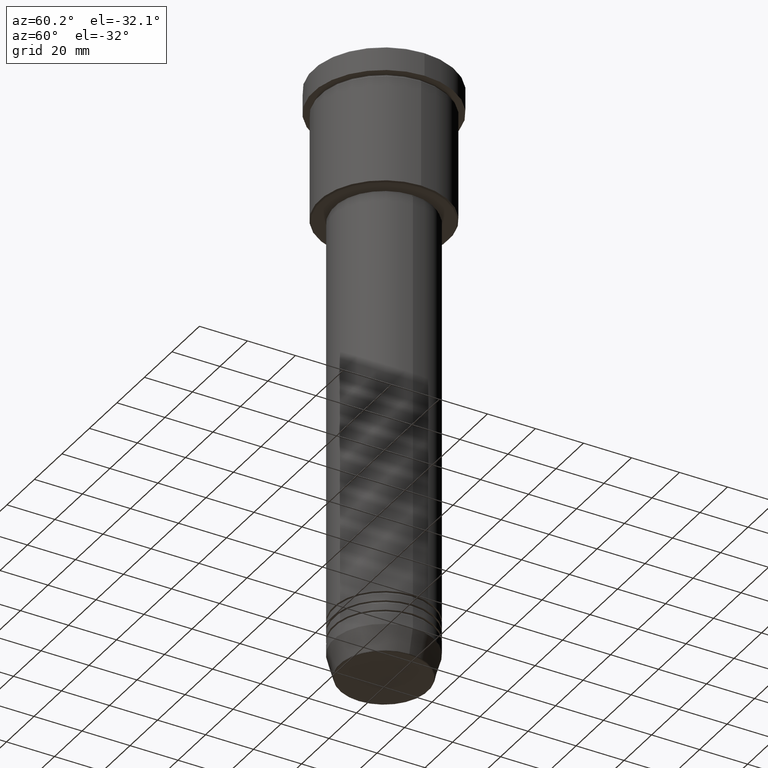
[diagram: clean part render]
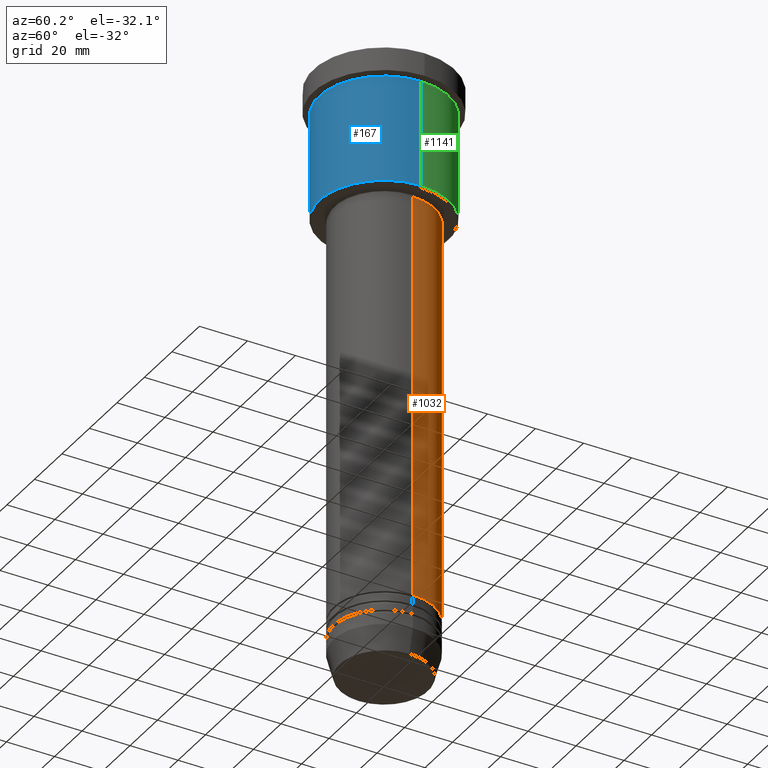
[diagram: same view with three faces highlighted in distinct colors, each labeled with its STEP entity id]
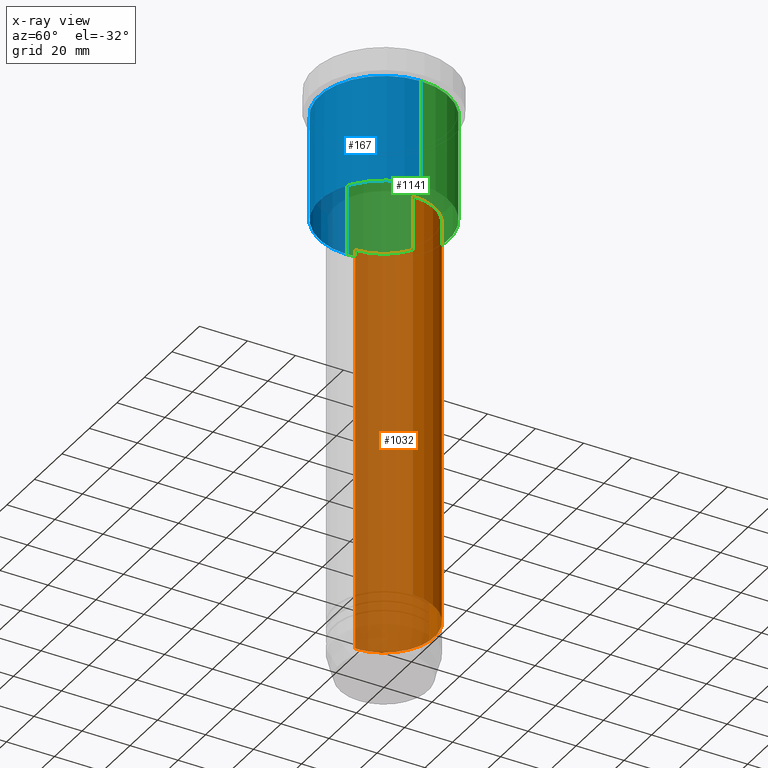
[diagram: x-ray of the same camera — body ghosted, the three highlighted faces saturated]
A machine part, auxiliary view with three faces highlighted in distinct colors.
The next image is the same camera in x-ray (body ghosted, the three faces saturated) — at least one of them is partly hidden behind the body in this view.
Their STEP definitions:

[orange] entity #1032 — the highlighted cylindrical surface (partial cylindrical patch) has radius 21 mm, axis along (-0, -0, 1).
#44 = VERTEX_POINT ( 'NONE', #1158 ) ;
#234 = ORIENTED_EDGE ( 'NONE', *, *, #1067, .F. ) ;
#240 = CARTESIAN_POINT ( 'NONE',  ( 0.000000000000000000, 0.000000000000000000, -226.9999999999998863 ) ) ;
#293 = DIRECTION ( 'NONE',  ( 1.000000000000000000, 0.000000000000000000, 0.000000000000000000 ) ) ;
#341 = CARTESIAN_POINT ( 'NONE',  ( -20.99999999999999645, 2.571758278209441267E-15, -57.00000000000002842 ) ) ;
#348 = CIRCLE ( 'NONE', #710, 21.00000000000000000 ) ;
#443 = CARTESIAN_POINT ( 'NONE',  ( 0.000000000000000000, 0.000000000000000000, 0.000000000000000000 ) ) ;
#463 = CARTESIAN_POINT ( 'NONE',  ( 0.000000000000000000, 0.000000000000000000, -57.00000000000002842 ) ) ;
#480 = LINE ( 'NONE', #687, #1092 ) ;
#506 = EDGE_CURVE ( 'NONE', #44, #1037, #480, .T. ) ;
#512 = ORIENTED_EDGE ( 'NONE', *, *, #1011, .T. ) ;
#542 = EDGE_CURVE ( 'NONE', #561, #852, #853, .T. ) ;
#561 = VERTEX_POINT ( 'NONE', #753 ) ;
#584 = CARTESIAN_POINT ( 'NONE',  ( -20.99999999999999645, 2.571758278209441267E-15, 0.000000000000000000 ) ) ;
#687 = CARTESIAN_POINT ( 'NONE',  ( 20.99999999999999645, 0.000000000000000000, 0.000000000000000000 ) ) ;
#709 = DIRECTION ( 'NONE',  ( 1.000000000000000000, 0.000000000000000000, 0.000000000000000000 ) ) ;
#710 = AXIS2_PLACEMENT_3D ( 'NONE', #240, #890, #795 ) ;
#753 = CARTESIAN_POINT ( 'NONE',  ( -21.00000000000000000, 2.571758278209441661E-15, -226.9999999999998863 ) ) ;
#772 = ORIENTED_EDGE ( 'NONE', *, *, #542, .T. ) ;
#773 = EDGE_LOOP ( 'NONE', ( #512, #772, #234, #983 ) ) ;
#790 = CYLINDRICAL_SURFACE ( 'NONE', #925, 20.99999999999999645 ) ;
#795 = DIRECTION ( 'NONE',  ( 1.000000000000000000, 0.000000000000000000, 0.000000000000000000 ) ) ;
#805 = FACE_OUTER_BOUND ( 'NONE', #773, .T. ) ;
#830 = DIRECTION ( 'NONE',  ( -0.000000000000000000, -0.000000000000000000, 1.000000000000000000 ) ) ;
#852 = VERTEX_POINT ( 'NONE', #341 ) ;
#853 = LINE ( 'NONE', #584, #1007 ) ;
#890 = DIRECTION ( 'NONE',  ( -0.000000000000000000, -0.000000000000000000, 1.000000000000000000 ) ) ;
#891 = AXIS2_PLACEMENT_3D ( 'NONE', #463, #830, #293 ) ;
#925 = AXIS2_PLACEMENT_3D ( 'NONE', #443, #978, #709 ) ;
#978 = DIRECTION ( 'NONE',  ( -0.000000000000000000, -0.000000000000000000, 1.000000000000000000 ) ) ;
#983 = ORIENTED_EDGE ( 'NONE', *, *, #506, .F. ) ;
#1007 = VECTOR ( 'NONE', #1035, 1000.000000000000000 ) ;
#1011 = EDGE_CURVE ( 'NONE', #44, #561, #348, .T. ) ;
#1032 = ADVANCED_FACE ( 'NONE', ( #805 ), #790, .T. ) ;
#1035 = DIRECTION ( 'NONE',  ( -0.000000000000000000, -0.000000000000000000, 1.000000000000000000 ) ) ;
#1037 = VERTEX_POINT ( 'NONE', #1168 ) ;
#1049 = DIRECTION ( 'NONE',  ( -0.000000000000000000, -0.000000000000000000, 1.000000000000000000 ) ) ;
#1067 = EDGE_CURVE ( 'NONE', #1037, #852, #1145, .T. ) ;
#1092 = VECTOR ( 'NONE', #1049, 1000.000000000000000 ) ;
#1145 = CIRCLE ( 'NONE', #891, 20.99999999999999645 ) ;
#1158 = CARTESIAN_POINT ( 'NONE',  ( 21.00000000000000000, 0.000000000000000000, -226.9999999999998863 ) ) ;
#1168 = CARTESIAN_POINT ( 'NONE',  ( 20.99999999999999645, 0.000000000000000000, -57.00000000000002842 ) ) ;

[blue] entity #167 — the highlighted cylindrical surface (partial cylindrical patch) has radius 27 mm, axis along (-0, -0, 1).
#10 = VERTEX_POINT ( 'NONE', #77 ) ;
#45 = DIRECTION ( 'NONE',  ( -0.000000000000000000, -0.000000000000000000, 1.000000000000000000 ) ) ;
#77 = CARTESIAN_POINT ( 'NONE',  ( 27.00000000000000355, 0.000000000000000000, -55.50000000000002132 ) ) ;
#87 = CARTESIAN_POINT ( 'NONE',  ( 0.000000000000000000, 0.000000000000000000, -10.99999999999999289 ) ) ;
#93 = CARTESIAN_POINT ( 'NONE',  ( 27.00000000000000355, 0.000000000000000000, -10.99999999999999289 ) ) ;
#98 = FACE_OUTER_BOUND ( 'NONE', #989, .T. ) ;
#110 = VERTEX_POINT ( 'NONE', #93 ) ;
#117 = LINE ( 'NONE', #760, #663 ) ;
#162 = ORIENTED_EDGE ( 'NONE', *, *, #291, .T. ) ;
#167 = ADVANCED_FACE ( 'NONE', ( #98 ), #1101, .T. ) ;
#173 = ORIENTED_EDGE ( 'NONE', *, *, #539, .T. ) ;
#214 = EDGE_CURVE ( 'NONE', #874, #110, #1177, .T. ) ;
#281 = CARTESIAN_POINT ( 'NONE',  ( 0.000000000000000000, 0.000000000000000000, 0.000000000000000000 ) ) ;
#291 = EDGE_CURVE ( 'NONE', #1175, #10, #345, .T. ) ;
#304 = AXIS2_PLACEMENT_3D ( 'NONE', #87, #457, #821 ) ;
#345 = CIRCLE ( 'NONE', #1089, 27.00000000000000355 ) ;
#407 = ORIENTED_EDGE ( 'NONE', *, *, #214, .F. ) ;
#410 = ORIENTED_EDGE ( 'NONE', *, *, #899, .F. ) ;
#425 = CARTESIAN_POINT ( 'NONE',  ( 0.000000000000000000, 0.000000000000000000, -55.50000000000002132 ) ) ;
#426 = CARTESIAN_POINT ( 'NONE',  ( -27.00000000000000355, 3.306546357697854128E-15, 0.000000000000000000 ) ) ;
#457 = DIRECTION ( 'NONE',  ( -0.000000000000000000, -0.000000000000000000, 1.000000000000000000 ) ) ;
#530 = LINE ( 'NONE', #426, #762 ) ;
#539 = EDGE_CURVE ( 'NONE', #10, #110, #117, .T. ) ;
#639 = DIRECTION ( 'NONE',  ( 1.000000000000000000, 0.000000000000000000, 0.000000000000000000 ) ) ;
#652 = DIRECTION ( 'NONE',  ( -0.000000000000000000, -0.000000000000000000, 1.000000000000000000 ) ) ;
#663 = VECTOR ( 'NONE', #45, 1000.000000000000000 ) ;
#760 = CARTESIAN_POINT ( 'NONE',  ( 27.00000000000000355, 0.000000000000000000, 0.000000000000000000 ) ) ;
#762 = VECTOR ( 'NONE', #987, 1000.000000000000000 ) ;
#787 = DIRECTION ( 'NONE',  ( -0.000000000000000000, -0.000000000000000000, 1.000000000000000000 ) ) ;
#821 = DIRECTION ( 'NONE',  ( 1.000000000000000000, 0.000000000000000000, 0.000000000000000000 ) ) ;
#857 = AXIS2_PLACEMENT_3D ( 'NONE', #281, #652, #639 ) ;
#874 = VERTEX_POINT ( 'NONE', #1072 ) ;
#899 = EDGE_CURVE ( 'NONE', #1175, #874, #530, .T. ) ;
#987 = DIRECTION ( 'NONE',  ( -0.000000000000000000, -0.000000000000000000, 1.000000000000000000 ) ) ;
#989 = EDGE_LOOP ( 'NONE', ( #410, #162, #173, #407 ) ) ;
#1072 = CARTESIAN_POINT ( 'NONE',  ( -27.00000000000000355, 3.306546357697854128E-15, -10.99999999999999289 ) ) ;
#1089 = AXIS2_PLACEMENT_3D ( 'NONE', #425, #787, #1172 ) ;
#1101 = CYLINDRICAL_SURFACE ( 'NONE', #857, 27.00000000000000355 ) ;
#1115 = CARTESIAN_POINT ( 'NONE',  ( -27.00000000000000355, 3.306546357697854128E-15, -55.50000000000002132 ) ) ;
#1172 = DIRECTION ( 'NONE',  ( -1.000000000000000000, 0.000000000000000000, 0.000000000000000000 ) ) ;
#1175 = VERTEX_POINT ( 'NONE', #1115 ) ;
#1177 = CIRCLE ( 'NONE', #304, 27.00000000000000355 ) ;

[green] entity #1141 — the highlighted cylindrical surface (partial cylindrical patch) has radius 27 mm, axis along (-0, -0, 1).
#10 = VERTEX_POINT ( 'NONE', #77 ) ;
#17 = CARTESIAN_POINT ( 'NONE',  ( 0.000000000000000000, 0.000000000000000000, 0.000000000000000000 ) ) ;
#30 = CARTESIAN_POINT ( 'NONE',  ( 0.000000000000000000, 0.000000000000000000, -55.50000000000002132 ) ) ;
#45 = DIRECTION ( 'NONE',  ( -0.000000000000000000, -0.000000000000000000, 1.000000000000000000 ) ) ;
#69 = CIRCLE ( 'NONE', #226, 27.00000000000000355 ) ;
#77 = CARTESIAN_POINT ( 'NONE',  ( 27.00000000000000355, 0.000000000000000000, -55.50000000000002132 ) ) ;
#93 = CARTESIAN_POINT ( 'NONE',  ( 27.00000000000000355, 0.000000000000000000, -10.99999999999999289 ) ) ;
#94 = FACE_OUTER_BOUND ( 'NONE', #322, .T. ) ;
#110 = VERTEX_POINT ( 'NONE', #93 ) ;
#116 = ORIENTED_EDGE ( 'NONE', *, *, #819, .T. ) ;
#117 = LINE ( 'NONE', #760, #663 ) ;
#194 = DIRECTION ( 'NONE',  ( 1.000000000000000000, 0.000000000000000000, 0.000000000000000000 ) ) ;
#211 = DIRECTION ( 'NONE',  ( -0.000000000000000000, -0.000000000000000000, 1.000000000000000000 ) ) ;
#221 = ORIENTED_EDGE ( 'NONE', *, *, #899, .T. ) ;
#226 = AXIS2_PLACEMENT_3D ( 'NONE', #30, #586, #1043 ) ;
#287 = AXIS2_PLACEMENT_3D ( 'NONE', #313, #211, #861 ) ;
#313 = CARTESIAN_POINT ( 'NONE',  ( 0.000000000000000000, 0.000000000000000000, -10.99999999999999289 ) ) ;
#322 = EDGE_LOOP ( 'NONE', ( #116, #221, #551, #849 ) ) ;
#426 = CARTESIAN_POINT ( 'NONE',  ( -27.00000000000000355, 3.306546357697854128E-15, 0.000000000000000000 ) ) ;
#530 = LINE ( 'NONE', #426, #762 ) ;
#539 = EDGE_CURVE ( 'NONE', #10, #110, #117, .T. ) ;
#551 = ORIENTED_EDGE ( 'NONE', *, *, #722, .F. ) ;
#586 = DIRECTION ( 'NONE',  ( -0.000000000000000000, -0.000000000000000000, 1.000000000000000000 ) ) ;
#596 = DIRECTION ( 'NONE',  ( -0.000000000000000000, -0.000000000000000000, 1.000000000000000000 ) ) ;
#643 = CIRCLE ( 'NONE', #287, 27.00000000000000355 ) ;
#663 = VECTOR ( 'NONE', #45, 1000.000000000000000 ) ;
#722 = EDGE_CURVE ( 'NONE', #110, #874, #643, .T. ) ;
#760 = CARTESIAN_POINT ( 'NONE',  ( 27.00000000000000355, 0.000000000000000000, 0.000000000000000000 ) ) ;
#762 = VECTOR ( 'NONE', #987, 1000.000000000000000 ) ;
#819 = EDGE_CURVE ( 'NONE', #10, #1175, #69, .T. ) ;
#849 = ORIENTED_EDGE ( 'NONE', *, *, #539, .F. ) ;
#861 = DIRECTION ( 'NONE',  ( 1.000000000000000000, 0.000000000000000000, 0.000000000000000000 ) ) ;
#874 = VERTEX_POINT ( 'NONE', #1072 ) ;
#899 = EDGE_CURVE ( 'NONE', #1175, #874, #530, .T. ) ;
#987 = DIRECTION ( 'NONE',  ( -0.000000000000000000, -0.000000000000000000, 1.000000000000000000 ) ) ;
#1014 = CYLINDRICAL_SURFACE ( 'NONE', #1093, 27.00000000000000355 ) ;
#1043 = DIRECTION ( 'NONE',  ( -1.000000000000000000, 0.000000000000000000, 0.000000000000000000 ) ) ;
#1072 = CARTESIAN_POINT ( 'NONE',  ( -27.00000000000000355, 3.306546357697854128E-15, -10.99999999999999289 ) ) ;
#1093 = AXIS2_PLACEMENT_3D ( 'NONE', #17, #596, #194 ) ;
#1115 = CARTESIAN_POINT ( 'NONE',  ( -27.00000000000000355, 3.306546357697854128E-15, -55.50000000000002132 ) ) ;
#1141 = ADVANCED_FACE ( 'NONE', ( #94 ), #1014, .T. ) ;
#1175 = VERTEX_POINT ( 'NONE', #1115 ) ;